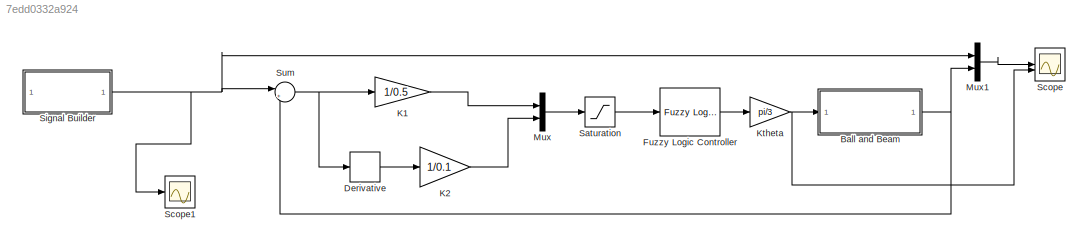
MODEL slx_7edd0332a924
KIND model
CONFIG AbsTol = auto
CONFIG EnableMultiTasking = on
CONFIG FixedStep = 0.01
CONFIG MaxStep = auto
CONFIG MinStep = auto
CONFIG RelTol = 1e-3
CONFIG SampleTimeConstraint = Unconstrained
CONFIG SolverName = ode4
CONFIG StartTime = 0.0
CONFIG StopTime = 100
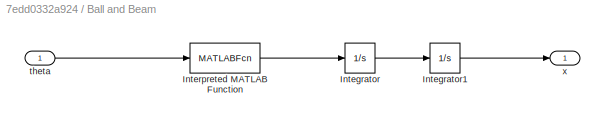
BLOCK [SubSystem] Ball and Beam
BLOCK [Integrator] Ball and Beam/Integrator
BLOCK [Integrator] Ball and Beam/Integrator1
BLOCK [MATLABFcn] Ball and Beam/Interpreted MATLAB Function
  MATLABFcn = (-1 / ((5e-7 / 0.05^2) + 0.03)) * ((0.03 * 9.81 * 0.07 * sin(u)) / (0.5 - 0.23))
BLOCK [Inport] Ball and Beam/theta
BLOCK [Outport] Ball and Beam/x 
BLOCK [Derivative] Derivative
BLOCK [Reference] Fuzzy Logic Controller  REF=fuzblock/Fuzzy Logic   (lib defined in mdl_858b3b3e7478)
Controller
  SourceBlock = fuzblock/Fuzzy Logic \nController
  SourceType = Fuzzy Inference System
BLOCK [Gain] K1
  Gain = 1/0.5
BLOCK [Gain] K2
  Gain = 1/0.1
BLOCK [Gain] Ktheta
  Gain = pi/3
BLOCK [Mux] Mux
  DisplayOption = bar
  Inputs = 2
BLOCK [Mux] Mux1
  DisplayOption = bar
  Inputs = 2
BLOCK [Saturate] Saturation
BLOCK [Scope] Scope
  Floating = off
  NumInputPorts = 2
  ScopeSpecificationString = Simulink.scopes.TimeScopeBlockCfg('CurrentConfiguration', extmgr.ConfigurationSet(extmgr.Configuration('Core','General UI',true,'FigureColor',[1 1 1]),extmgr.Configuration('Core','Source UI',true),extmgr.Configuration('Sources','WiredSimulink',true),extmgr.Configuration('Visuals','Time Domain',true,'SerializedDisplays',{struct('MinYLimReal','-0.05275','MaxYLimReal','0.47475','YLabelReal','','MinYL...<+2321ch>
BLOCK [Scope] Scope1
  Floating = off
  NumInputPorts = 1
  ScopeSpecificationString = Simulink.scopes.TimeScopeBlockCfg('CurrentConfiguration', extmgr.ConfigurationSet(extmgr.Configuration('Core','General UI',true),extmgr.Configuration('Core','Source UI',true),extmgr.Configuration('Sources','WiredSimulink',true,'DataLoggingVariableName','ScopeData1'),extmgr.Configuration('Visuals','Time Domain',true,'SerializedDisplays',{struct('MinYLimReal','0.01025','MaxYLimReal','0.46775','YLabe...<+1423ch>
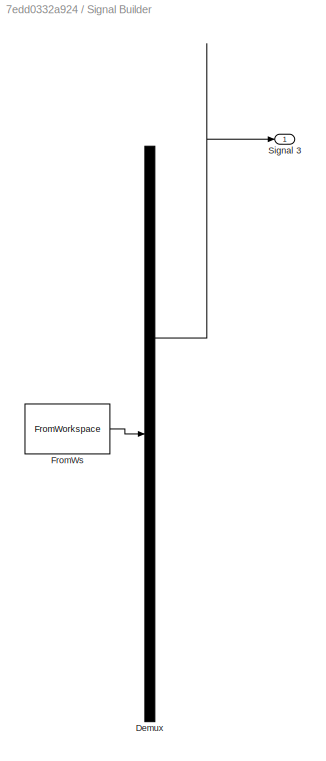
BLOCK [SubSystem] Signal Builder
  ClipboardFcn = sigbuilder_block('clipboard');
  CloseFcn = sigbuilder_block('close');
  ContinueFcn = sigbuilder_block('continue');
  CopyFcn = sigbuilder_block('copy');
  DeleteFcn = sigbuilder_block('delete');
  LoadFcn = sigbuilder_block('load',[275.25 149.25 949.5 474.75 ]);
  MaskHideContents = on
  ModelCloseFcn = sigbuilder_block('modelClose');
  NameChangeFcn = sigbuilder_block('namechange');
  OpenFcn = sigbuilder_block('open',[275.25 149.25 949.5 474.75 ]);
  PauseFcn = sigbuilder_block('pause');
  PreSaveFcn = sigbuilder_block('preSave');
  StartFcn = sigbuilder_block('start');
  StopFcn = sigbuilder_block('stop');
  Tag = STV Subsys
BLOCK [Demux] Signal Builder/Demux
  DisplayOption = none
  Outputs = 1
  Tag = STV Demux
BLOCK [FromWorkspace] Signal Builder/FromWs
  Tag = STV FromWs
  VariableName = tuvar
BLOCK [Outport] Signal Builder/Signal 3
  Tag = STV Outport
BLOCK [Sum] Sum
  Inputs = |+-
LINE Ball and Beam/Integrator1:1 -> Ball and Beam/x :1
LINE Ball and Beam/Integrator:1 -> Ball and Beam/Integrator1:1
LINE Ball and Beam/Interpreted MATLAB Function:1 -> Ball and Beam/Integrator:1
LINE Ball and Beam/theta:1 -> Ball and Beam/Interpreted MATLAB Function:1
NET Ball and Beam:1 -> Mux1:2, Sum:2
LINE Derivative:1 -> K2:1
LINE Fuzzy Logic Controller:1 -> Ktheta:1
LINE K1:1 -> Mux:1
LINE K2:1 -> Mux:2
NET Ktheta:1 -> Ball and Beam:1, Scope:2
LINE Mux1:1 -> Scope:1
LINE Mux:1 -> Saturation:1
LINE Saturation:1 -> Fuzzy Logic Controller:1
NET Signal Builder:1 -> Mux1:1, Scope1:1, Sum:1
NET Sum:1 -> Derivative:1, K1:1
note: NET lines group one-source signal fan-out (src -> all destinations, sorted); 1:1 wires keep LINE
